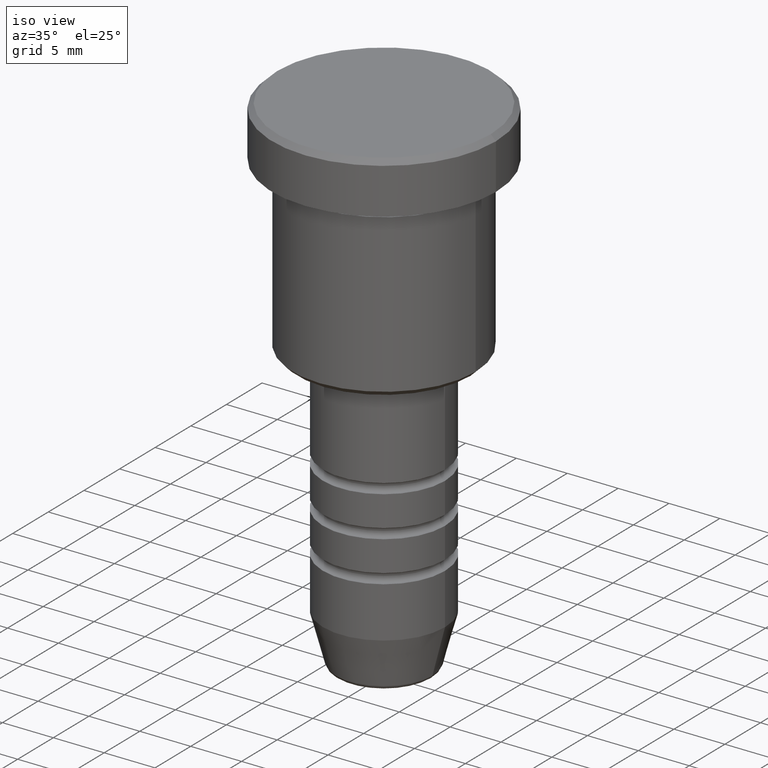
[diagram: clean part render]
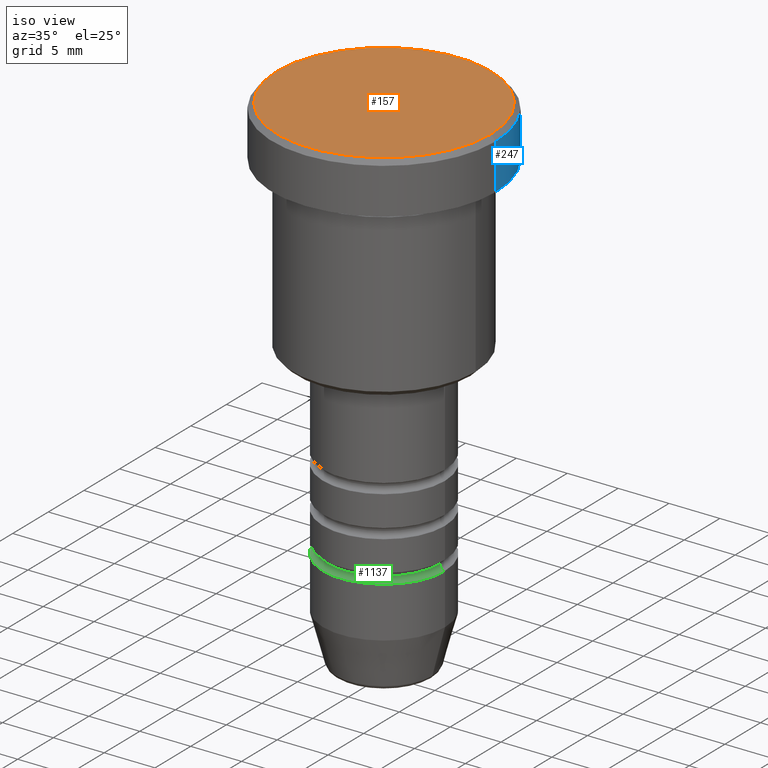
[diagram: same view with three faces highlighted in distinct colors, each labeled with its STEP entity id]
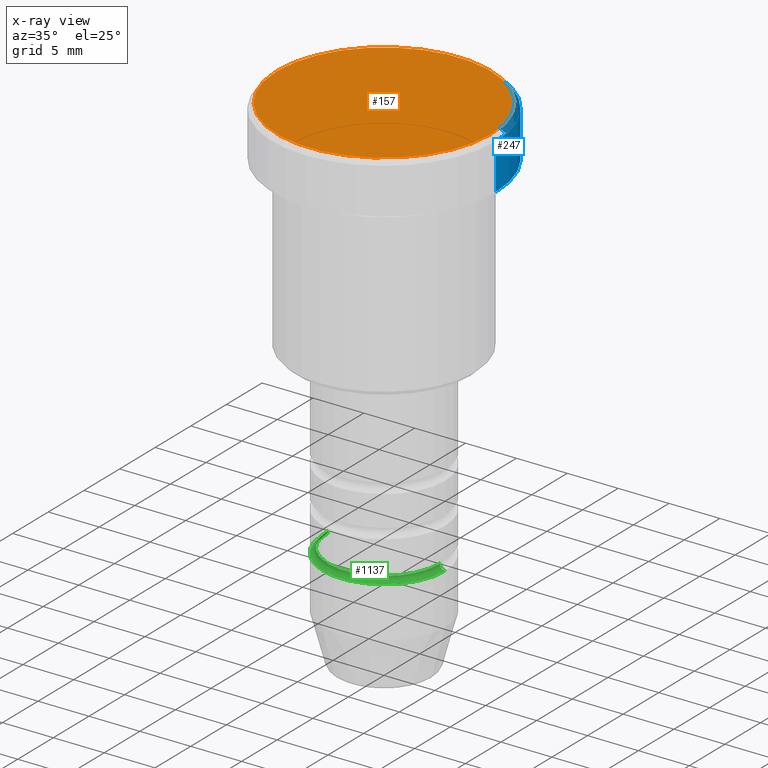
[diagram: x-ray of the same camera — body ghosted, the three highlighted faces saturated]
A machine part, iso view with three faces highlighted in distinct colors.
The next image is the same camera in x-ray (body ghosted, the three faces saturated) — at least one of them is partly hidden behind the body in this view.
Their STEP definitions:

[orange] entity #157 — the highlighted planar face has unit normal (0, -0, 1).
#77 = AXIS2_PLACEMENT_3D ( 'NONE', #388, #315, #656 ) ;
#123 = CARTESIAN_POINT ( 'NONE',  ( 0.000000000000000000, 0.000000000000000000, 0.000000000000000000 ) ) ;
#141 = CIRCLE ( 'NONE', #961, 10.50000000000001599 ) ;
#157 = ADVANCED_FACE ( 'NONE', ( #880 ), #776, .T. ) ;
#230 = CARTESIAN_POINT ( 'NONE',  ( 0.000000000000000000, 0.000000000000000000, 0.000000000000000000 ) ) ;
#277 = ORIENTED_EDGE ( 'NONE', *, *, #746, .T. ) ;
#288 = EDGE_CURVE ( 'NONE', #867, #392, #1053, .T. ) ;
#310 = DIRECTION ( 'NONE',  ( 1.000000000000000000, 0.000000000000000000, 0.000000000000000000 ) ) ;
#315 = DIRECTION ( 'NONE',  ( -0.000000000000000000, -0.000000000000000000, 1.000000000000000000 ) ) ;
#325 = DIRECTION ( 'NONE',  ( 0.000000000000000000, -0.000000000000000000, 1.000000000000000000 ) ) ;
#362 = CARTESIAN_POINT ( 'NONE',  ( -10.50000000000001599, 0.000000000000000000, 0.000000000000000000 ) ) ;
#388 = CARTESIAN_POINT ( 'NONE',  ( 0.000000000000000000, 0.000000000000000000, 0.000000000000000000 ) ) ;
#392 = VERTEX_POINT ( 'NONE', #362 ) ;
#405 = ORIENTED_EDGE ( 'NONE', *, *, #288, .T. ) ;
#593 = CARTESIAN_POINT ( 'NONE',  ( 10.50000000000001599, 1.316495309083405604E-15, 0.000000000000000000 ) ) ;
#598 = DIRECTION ( 'NONE',  ( 1.000000000000000000, 0.000000000000000000, 0.000000000000000000 ) ) ;
#656 = DIRECTION ( 'NONE',  ( 1.000000000000000000, 0.000000000000000000, 0.000000000000000000 ) ) ;
#746 = EDGE_CURVE ( 'NONE', #392, #867, #141, .T. ) ;
#776 = PLANE ( 'NONE',  #1005 ) ;
#867 = VERTEX_POINT ( 'NONE', #593 ) ;
#880 = FACE_OUTER_BOUND ( 'NONE', #1025, .T. ) ;
#961 = AXIS2_PLACEMENT_3D ( 'NONE', #123, #1122, #310 ) ;
#1005 = AXIS2_PLACEMENT_3D ( 'NONE', #230, #325, #598 ) ;
#1025 = EDGE_LOOP ( 'NONE', ( #277, #405 ) ) ;
#1053 = CIRCLE ( 'NONE', #77, 10.50000000000001599 ) ;
#1122 = DIRECTION ( 'NONE',  ( -0.000000000000000000, -0.000000000000000000, 1.000000000000000000 ) ) ;

[blue] entity #247 — the highlighted cylindrical surface (partial cylindrical patch) has radius 11 mm, axis along (-0, -0, 1).
#18 = DIRECTION ( 'NONE',  ( 1.000000000000000000, 0.000000000000000000, 0.000000000000000000 ) ) ;
#30 = LINE ( 'NONE', #502, #999 ) ;
#126 = EDGE_LOOP ( 'NONE', ( #1090, #235, #368, #830 ) ) ;
#176 = CARTESIAN_POINT ( 'NONE',  ( 0.000000000000000000, 0.000000000000000000, -0.4999999999999882871 ) ) ;
#178 = VERTEX_POINT ( 'NONE', #607 ) ;
#182 = VECTOR ( 'NONE', #535, 1000.000000000000000 ) ;
#190 = VERTEX_POINT ( 'NONE', #254 ) ;
#232 = CARTESIAN_POINT ( 'NONE',  ( -11.00000000000000000, 1.347111479062088602E-15, -5.000000000000000000 ) ) ;
#235 = ORIENTED_EDGE ( 'NONE', *, *, #821, .T. ) ;
#247 = ADVANCED_FACE ( 'NONE', ( #749 ), #308, .T. ) ;
#254 = CARTESIAN_POINT ( 'NONE',  ( 11.00000000000000178, 0.000000000000000000, -0.4999999999999882871 ) ) ;
#265 = CIRCLE ( 'NONE', #390, 11.00000000000000000 ) ;
#308 = CYLINDRICAL_SURFACE ( 'NONE', #328, 11.00000000000000178 ) ;
#328 = AXIS2_PLACEMENT_3D ( 'NONE', #835, #672, #18 ) ;
#368 = ORIENTED_EDGE ( 'NONE', *, *, #463, .T. ) ;
#390 = AXIS2_PLACEMENT_3D ( 'NONE', #1158, #703, #627 ) ;
#463 = EDGE_CURVE ( 'NONE', #178, #190, #569, .T. ) ;
#502 = CARTESIAN_POINT ( 'NONE',  ( -11.00000000000000178, 1.347111479062088602E-15, 0.000000000000000000 ) ) ;
#535 = DIRECTION ( 'NONE',  ( -0.000000000000000000, -0.000000000000000000, 1.000000000000000000 ) ) ;
#569 = CIRCLE ( 'NONE', #916, 11.00000000000000178 ) ;
#607 = CARTESIAN_POINT ( 'NONE',  ( -11.00000000000000178, 1.347111479062088602E-15, -0.4999999999999882871 ) ) ;
#609 = LINE ( 'NONE', #1084, #182 ) ;
#627 = DIRECTION ( 'NONE',  ( 1.000000000000000000, 0.000000000000000000, 0.000000000000000000 ) ) ;
#631 = VERTEX_POINT ( 'NONE', #1113 ) ;
#672 = DIRECTION ( 'NONE',  ( -0.000000000000000000, -0.000000000000000000, 1.000000000000000000 ) ) ;
#703 = DIRECTION ( 'NONE',  ( -0.000000000000000000, -0.000000000000000000, 1.000000000000000000 ) ) ;
#711 = DIRECTION ( 'NONE',  ( 1.000000000000000000, 0.000000000000000000, 0.000000000000000000 ) ) ;
#749 = FACE_OUTER_BOUND ( 'NONE', #126, .T. ) ;
#821 = EDGE_CURVE ( 'NONE', #1014, #178, #30, .T. ) ;
#830 = ORIENTED_EDGE ( 'NONE', *, *, #1069, .F. ) ;
#835 = CARTESIAN_POINT ( 'NONE',  ( 0.000000000000000000, 0.000000000000000000, 0.000000000000000000 ) ) ;
#916 = AXIS2_PLACEMENT_3D ( 'NONE', #176, #1164, #711 ) ;
#999 = VECTOR ( 'NONE', #1144, 1000.000000000000000 ) ;
#1014 = VERTEX_POINT ( 'NONE', #232 ) ;
#1069 = EDGE_CURVE ( 'NONE', #631, #190, #609, .T. ) ;
#1084 = CARTESIAN_POINT ( 'NONE',  ( 11.00000000000000178, 0.000000000000000000, 0.000000000000000000 ) ) ;
#1090 = ORIENTED_EDGE ( 'NONE', *, *, #1171, .T. ) ;
#1113 = CARTESIAN_POINT ( 'NONE',  ( 11.00000000000000000, 0.000000000000000000, -5.000000000000000000 ) ) ;
#1144 = DIRECTION ( 'NONE',  ( -0.000000000000000000, -0.000000000000000000, 1.000000000000000000 ) ) ;
#1158 = CARTESIAN_POINT ( 'NONE',  ( 0.000000000000000000, 0.000000000000000000, -5.000000000000000000 ) ) ;
#1164 = DIRECTION ( 'NONE',  ( 0.000000000000000000, 0.000000000000000000, -1.000000000000000000 ) ) ;
#1171 = EDGE_CURVE ( 'NONE', #631, #1014, #265, .T. ) ;

[green] entity #1137 — the highlighted toroidal blend (fillet) surface has major radius 6 mm and minor (blend) radius 0.5 mm.
#12 = CARTESIAN_POINT ( 'NONE',  ( 5.500000000000001776, 0.000000000000000000, -39.50000000000000000 ) ) ;
#38 = DIRECTION ( 'NONE',  ( 0.000000000000000000, 0.000000000000000000, -1.000000000000000000 ) ) ;
#47 = DIRECTION ( 'NONE',  ( 1.224646799147353207E-16, 1.000000000000000000, 0.000000000000000000 ) ) ;
#81 = CARTESIAN_POINT ( 'NONE',  ( 0.000000000000000000, 0.000000000000000000, -40.00000000000000711 ) ) ;
#120 = AXIS2_PLACEMENT_3D ( 'NONE', #81, #361, #719 ) ;
#129 = CARTESIAN_POINT ( 'NONE',  ( 5.999999999999999112, 0.000000000000000000, -40.00000000000000711 ) ) ;
#231 = VERTEX_POINT ( 'NONE', #1128 ) ;
#239 = CIRCLE ( 'NONE', #632, 0.5000000000000004441 ) ;
#246 = EDGE_CURVE ( 'NONE', #584, #994, #790, .T. ) ;
#264 = FACE_OUTER_BOUND ( 'NONE', #1056, .T. ) ;
#304 = DIRECTION ( 'NONE',  ( 1.000000000000000000, 0.000000000000000000, 0.000000000000000000 ) ) ;
#313 = CIRCLE ( 'NONE', #614, 5.500000000000001776 ) ;
#323 = CARTESIAN_POINT ( 'NONE',  ( -6.000000000000001776, 7.347880794884121708E-16, -39.50000000000000000 ) ) ;
#361 = DIRECTION ( 'NONE',  ( -0.000000000000000000, -0.000000000000000000, 1.000000000000000000 ) ) ;
#365 = DIRECTION ( 'NONE',  ( -0.000000000000000000, -0.000000000000000000, 1.000000000000000000 ) ) ;
#393 = CARTESIAN_POINT ( 'NONE',  ( 6.000000000000001776, 0.000000000000000000, -39.50000000000000000 ) ) ;
#407 = DIRECTION ( 'NONE',  ( 0.000000000000000000, -1.000000000000000000, 0.000000000000000000 ) ) ;
#488 = CIRCLE ( 'NONE', #120, 5.999999999999999112 ) ;
#494 = ORIENTED_EDGE ( 'NONE', *, *, #784, .T. ) ;
#578 = ORIENTED_EDGE ( 'NONE', *, *, #667, .F. ) ;
#584 = VERTEX_POINT ( 'NONE', #12 ) ;
#614 = AXIS2_PLACEMENT_3D ( 'NONE', #845, #1116, #304 ) ;
#632 = AXIS2_PLACEMENT_3D ( 'NONE', #323, #47, #950 ) ;
#635 = DIRECTION ( 'NONE',  ( 1.000000000000000000, 0.000000000000000000, 0.000000000000000000 ) ) ;
#667 = EDGE_CURVE ( 'NONE', #231, #584, #313, .T. ) ;
#718 = ORIENTED_EDGE ( 'NONE', *, *, #1177, .T. ) ;
#719 = DIRECTION ( 'NONE',  ( 1.000000000000000000, 0.000000000000000000, 0.000000000000000000 ) ) ;
#764 = TOROIDAL_SURFACE ( 'NONE', #844, 6.000000000000001776, 0.5000000000000000000 ) ;
#784 = EDGE_CURVE ( 'NONE', #231, #823, #239, .T. ) ;
#790 = CIRCLE ( 'NONE', #978, 0.5000000000000004441 ) ;
#823 = VERTEX_POINT ( 'NONE', #1041 ) ;
#844 = AXIS2_PLACEMENT_3D ( 'NONE', #1163, #365, #635 ) ;
#845 = CARTESIAN_POINT ( 'NONE',  ( 0.000000000000000000, 0.000000000000000000, -39.50000000000000000 ) ) ;
#950 = DIRECTION ( 'NONE',  ( -1.000000000000000000, 1.224646799147351482E-16, 0.000000000000000000 ) ) ;
#978 = AXIS2_PLACEMENT_3D ( 'NONE', #393, #407, #38 ) ;
#994 = VERTEX_POINT ( 'NONE', #129 ) ;
#1013 = ORIENTED_EDGE ( 'NONE', *, *, #246, .F. ) ;
#1041 = CARTESIAN_POINT ( 'NONE',  ( -5.999999999999999112, 7.347880794884118750E-16, -40.00000000000000711 ) ) ;
#1056 = EDGE_LOOP ( 'NONE', ( #578, #494, #718, #1013 ) ) ;
#1116 = DIRECTION ( 'NONE',  ( -0.000000000000000000, -0.000000000000000000, 1.000000000000000000 ) ) ;
#1128 = CARTESIAN_POINT ( 'NONE',  ( -5.500000000000001776, 7.041719095097280880E-16, -39.50000000000000000 ) ) ;
#1137 = ADVANCED_FACE ( 'NONE', ( #264 ), #764, .F. ) ;
#1163 = CARTESIAN_POINT ( 'NONE',  ( 0.000000000000000000, 0.000000000000000000, -39.50000000000000000 ) ) ;
#1177 = EDGE_CURVE ( 'NONE', #823, #994, #488, .T. ) ;